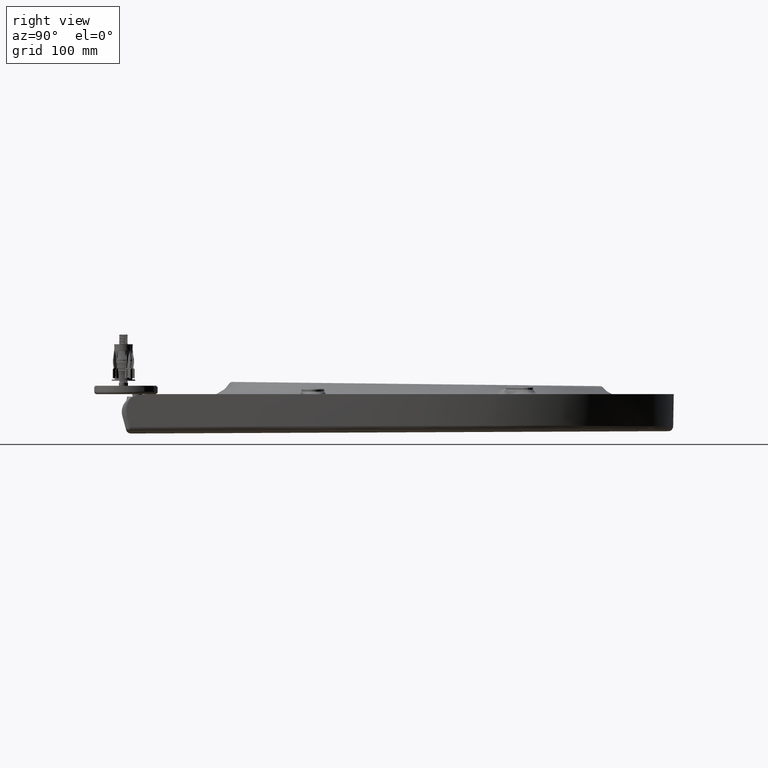
[diagram: clean part render]
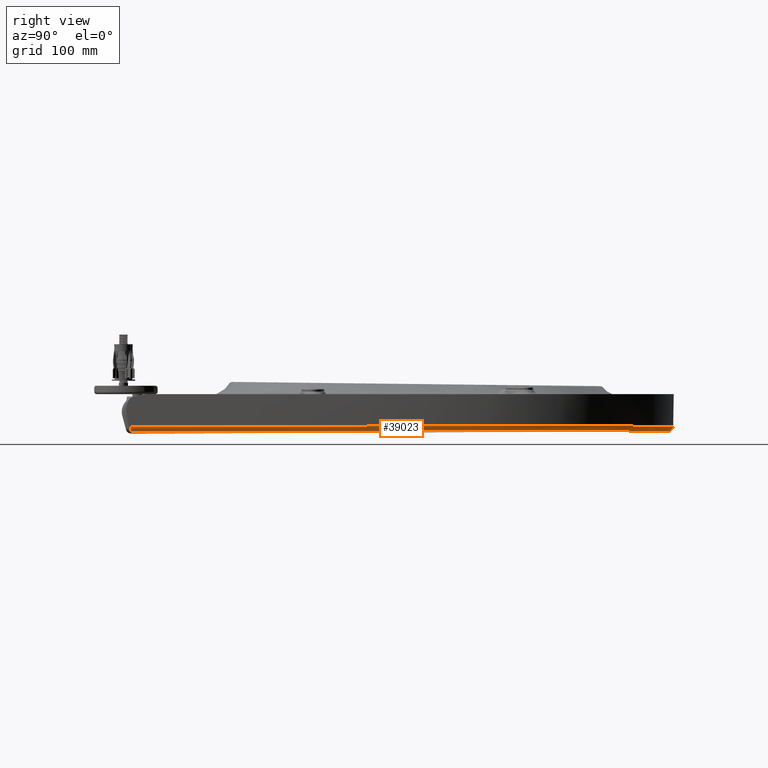
[diagram: same view with one face highlighted and labeled with its STEP entity id]
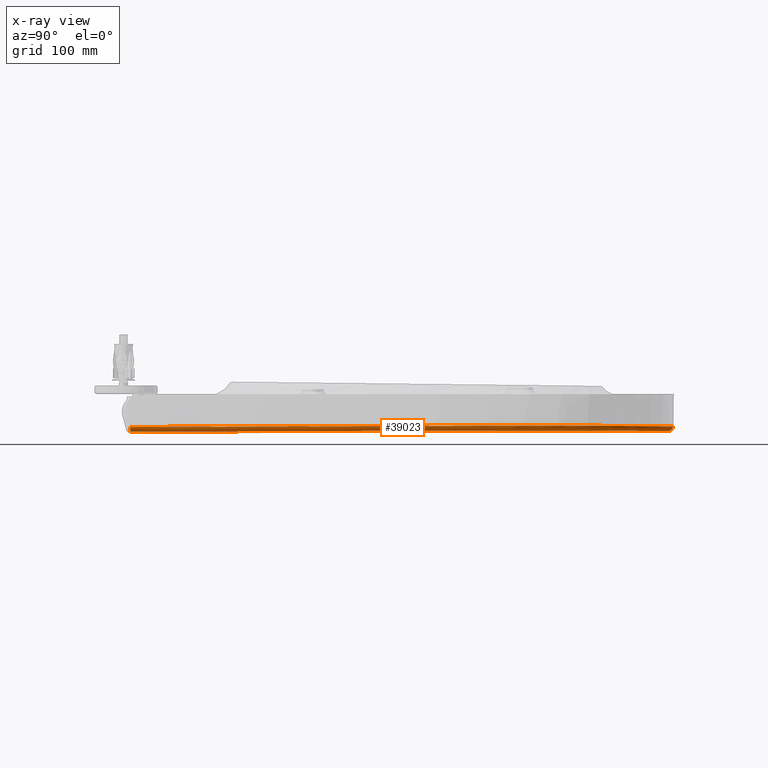
[diagram: x-ray of the same camera — body ghosted, the highlighted face saturated]
A machine part, right view. The second image highlights one B-rep face of the part: STEP entity #39023.
The next image is the same camera in x-ray: the body ghosted, the highlighted face saturated — about 0% of this face is hidden behind the body in this view.
In plain terms, the highlighted face is a freeform B-spline surface patch.
Its self-contained STEP definition (entity closure, byte-faithful):
#33900=CARTESIAN_POINT('',(4.627604190006E2,2.460631033034E1,
3.829599969836E-9));
#33901=CARTESIAN_POINT('',(4.627603025008E2,2.460630953782E1,
-2.270499311639E1));
#33902=CARTESIAN_POINT('',(4.524897503634E2,2.453182587123E1,
-6.805302126482E1));
#33903=CARTESIAN_POINT('',(4.177347201758E2,2.426129125879E1,
-1.143101611632E2));
#33904=CARTESIAN_POINT('',(3.810292007456E2,2.410670723836E1,
-1.412695677349E2));
#33905=CARTESIAN_POINT('',(3.501172814267E2,2.404989789112E1,
-1.556895786610E2));
#33906=CARTESIAN_POINT('',(3.174881770991E2,2.405954227008E1,
-1.649459725552E2));
#33907=CARTESIAN_POINT('',(2.841550716565E2,2.412484238811E1,
-1.702634994909E2));
#33908=CARTESIAN_POINT('',(2.507109372116E2,2.422181941606E1,
-1.734049631759E2));
#33909=CARTESIAN_POINT('',(2.060509088392E2,2.437498452617E1,
-1.759858462827E2));
#33910=CARTESIAN_POINT('',(1.502246252567E2,2.459570771253E1,
-1.773574154955E2));
#33911=CARTESIAN_POINT('',(8.328064476638E1,2.486774198140E1,
-1.781855839516E2));
#33912=CARTESIAN_POINT('',(3.864213415772E1,2.506585890198E1,
-1.784922737170E2));
#33913=CARTESIAN_POINT('',(1.632109471179E1,2.516144530375E1,
-1.785429383431E2));
#34782=CARTESIAN_POINT('',(1.632109471179E1,2.516144530375E1,
-1.785429383431E2));
#34783=CARTESIAN_POINT('',(1.632504537989E1,2.609130234823E1,
-1.785288250556E2));
#34784=CARTESIAN_POINT('',(1.633215677169E1,2.826293438333E1,
-1.777068076364E2));
#34785=CARTESIAN_POINT('',(1.633163809439E1,2.907911611064E1,
-1.755324369923E2));
#34786=CARTESIAN_POINT('',(1.632959549139E1,2.909330554996E1,
-1.746058536913E2));
#34793=CARTESIAN_POINT('',(4.610983279953E2,2.776543725589E1,
5.335791915723E-9));
#34794=CARTESIAN_POINT('',(4.621317713616E2,2.702150237290E1,
1.602790300982E-7));
#34795=CARTESIAN_POINT('',(4.627315847165E2,2.570814705510E1,
-1.239029701076E-9));
#34796=CARTESIAN_POINT('',(4.627604190006E2,2.460631033034E1,
3.829599969836E-9));
#34798=CARTESIAN_POINT('',(4.587786751379E2,2.851904757884E1,
2.029466195107E-9));
#34799=CARTESIAN_POINT('',(4.595337280347E2,2.851578857300E1,
1.165002999368E-7));
#34800=CARTESIAN_POINT('',(4.603878740900E2,2.827686483881E1,
-1.027143536691E-7));
#34801=CARTESIAN_POINT('',(4.610983279953E2,2.776543725589E1,
5.335791915723E-9));
#34803=CARTESIAN_POINT('',(1.632959549139E1,2.909330554996E1,
-1.746058536913E2));
#34804=CARTESIAN_POINT('',(3.863833669077E1,2.899775433623E1,
-1.745551994580E2));
#34805=CARTESIAN_POINT('',(8.325490620242E1,2.880987658701E1,
-1.742432165517E2));
#34806=CARTESIAN_POINT('',(1.501876298821E2,2.853326768873E1,
-1.734316544114E2));
#34807=CARTESIAN_POINT('',(2.170616075387E2,2.827027215039E1,
-1.717281261863E2));
#34808=CARTESIAN_POINT('',(2.727124375249E2,2.808489212178E1,
-1.680772873061E2));
#34809=CARTESIAN_POINT('',(3.166688336907E2,2.799605294869E1,
-1.610876391374E2));
#34810=CARTESIAN_POINT('',(3.487659611391E2,2.798381654259E1,
-1.519640874462E2));
#34811=CARTESIAN_POINT('',(3.789945588015E2,2.803477537495E1,
-1.378554740011E2));
#34812=CARTESIAN_POINT('',(4.148571851060E2,2.817974928419E1,
-1.115044529623E2));
#34813=CARTESIAN_POINT('',(4.487796239173E2,2.842501386519E1,
-6.632233986572E1));
#34814=CARTESIAN_POINT('',(4.587785875307E2,2.851904700339E1,
-2.212669010309E1));
#34815=CARTESIAN_POINT('',(4.587786751379E2,2.851904757885E1,
2.029466195107E-9));
#35445=CARTESIAN_POINT('',(1.632898872135E1,2.909328478536E1,
-1.746073269995E2));
#35446=VERTEX_POINT('',#35445);
#35448=VERTEX_POINT('',#34815);
#35449=VERTEX_POINT('',#34793);
#35450=VERTEX_POINT('',#34796);
#35451=VERTEX_POINT('',#34782);
#38812=CARTESIAN_POINT('',(1.098355538203E1,2.388451157151E1,
-1.783577449176E2));
#38813=CARTESIAN_POINT('',(1.147279900704E1,2.388241072953E1,
-1.783569998274E2));
#38814=CARTESIAN_POINT('',(1.818053974538E1,2.385361824933E1,
-1.783460831337E2));
#38815=CARTESIAN_POINT('',(3.056541517260E1,2.380073213944E1,
-1.783083416184E2));
#38816=CARTESIAN_POINT('',(4.763086646609E1,2.372845029175E1,
-1.782184908165E2));
#38817=CARTESIAN_POINT('',(6.325918306693E1,2.366267892421E1,
-1.781090621422E2));
#38818=CARTESIAN_POINT('',(7.773367709995E1,2.360209824893E1,
-1.779862013323E2));
#38819=CARTESIAN_POINT('',(9.143230123691E1,2.354507414515E1,
-1.778500201474E2));
#38820=CARTESIAN_POINT('',(1.047110318707E2,2.349009054879E1,
-1.776991407280E2));
#38821=CARTESIAN_POINT('',(1.178195215814E2,2.343610005920E1,
-1.775315626716E2));
#38822=CARTESIAN_POINT('',(1.308853439287E2,2.338258278642E1,
-1.773452470407E2));
#38823=CARTESIAN_POINT('',(1.439820870113E2,2.332921939669E1,
-1.771402391586E2));
#38824=CARTESIAN_POINT('',(1.572138278391E2,2.327575523419E1,
-1.769039274366E2));
#38825=CARTESIAN_POINT('',(1.707136773409E2,2.322192346120E1,
-1.766163134835E2));
#38826=CARTESIAN_POINT('',(1.846120211727E2,2.316750680457E1,
-1.762547897886E2));
#38827=CARTESIAN_POINT('',(1.989856954021E2,2.311257474031E1,
-1.757928926801E2));
#38828=CARTESIAN_POINT('',(2.137481463980E2,2.305790088145E1,
-1.752038097255E2));
#38829=CARTESIAN_POINT('',(2.285661372870E2,2.300507213305E1,
-1.744765741926E2));
#38830=CARTESIAN_POINT('',(2.429194753662E2,2.295641393323E1,
-1.736042163689E2));
#38831=CARTESIAN_POINT('',(2.563259637919E2,2.291383753602E1,
-1.725957725325E2));
#38832=CARTESIAN_POINT('',(2.685492191214E2,2.287789222231E1,
-1.714801347268E2));
#38833=CARTESIAN_POINT('',(2.796012586916E2,2.284801004676E1,
-1.702898072617E2));
#38834=CARTESIAN_POINT('',(2.896004294401E2,2.282370894493E1,
-1.690212622932E2));
#38835=CARTESIAN_POINT('',(2.986341075747E2,2.280457051240E1,
-1.676754717130E2));
#38836=CARTESIAN_POINT('',(3.067842548894E2,2.278998447689E1,
-1.662681213351E2));
#38837=CARTESIAN_POINT('',(3.141810429386E2,2.277922795154E1,
-1.648088118153E2));
#38838=CARTESIAN_POINT('',(3.210210063609E2,2.277159054626E1,
-1.632865760277E2));
#38839=CARTESIAN_POINT('',(3.275277059074E2,2.276654963060E1,
-1.616684905915E2));
#38840=CARTESIAN_POINT('',(3.338836881152E2,2.276383245341E1,
-1.599149093752E2));
#38841=CARTESIAN_POINT('',(3.401806869421E2,2.276341649863E1,
-1.579942955151E2));
#38842=CARTESIAN_POINT('',(3.464265002795E2,2.276536445294E1,
-1.558933511354E2));
#38843=CARTESIAN_POINT('',(3.526098481340E2,2.276972537285E1,
-1.536046750944E2));
#38844=CARTESIAN_POINT('',(3.587841735019E2,2.277660517110E1,
-1.510945853922E2));
#38845=CARTESIAN_POINT('',(3.651013011493E2,2.278637739718E1,
-1.482732480780E2));
#38846=CARTESIAN_POINT('',(3.717790873138E2,2.279986587883E1,
-1.449845937162E2));
#38847=CARTESIAN_POINT('',(3.790083511408E2,2.281839628996E1,
-1.410231458250E2));
#38848=CARTESIAN_POINT('',(3.868707100424E2,2.284333932365E1,
-1.361869775203E2));
#38849=CARTESIAN_POINT('',(3.953622255619E2,2.287576853924E1,
-1.302875355688E2));
#38850=CARTESIAN_POINT('',(4.044274152142E2,2.291659822807E1,
-1.231124461825E2));
#38851=CARTESIAN_POINT('',(4.139943635237E2,2.296654723302E1,
-1.143863683374E2));
#38852=CARTESIAN_POINT('',(4.239302473387E2,2.302584026829E1,
-1.037643901213E2));
#38853=CARTESIAN_POINT('',(4.339017322024E2,2.309304304976E1,
-9.094562162919E1));
#38854=CARTESIAN_POINT('',(4.432887387396E2,2.316362825587E1,
-7.587755460211E1));
#38855=CARTESIAN_POINT('',(4.512017923847E2,2.322818009517E1,
-5.929694746022E1));
#38856=CARTESIAN_POINT('',(4.569643475041E2,2.327780225016E1,
-4.251753979352E1));
#38857=CARTESIAN_POINT('',(4.604855201275E2,2.330946355496E1,
-2.684483372821E1));
#38858=CARTESIAN_POINT('',(4.622387753112E2,2.332562618588E1,
-1.279791040715E1));
#38859=CARTESIAN_POINT('',(4.626536484471E2,2.332947023900E1,
-2.226750301398E0));
#38860=CARTESIAN_POINT('',(4.625462930805E2,2.332847542084E1,3.691450294906E0));
#38861=CARTESIAN_POINT('',(4.624838100839E2,2.332789923522E1,5.459472416476E0));
#38862=CARTESIAN_POINT('',(1.100043730240E1,2.741090801931E1,
-1.794995713419E2));
#38863=CARTESIAN_POINT('',(1.148975700910E1,2.740880692517E1,
-1.794988259051E2));
#38864=CARTESIAN_POINT('',(1.819853562334E1,2.738001108205E1,
-1.794879041436E2));
#38865=CARTESIAN_POINT('',(3.058519556822E1,2.732712112950E1,
-1.794501453926E2));
#38866=CARTESIAN_POINT('',(4.765280863636E1,2.725483911757E1,
-1.793602552556E2));
#38867=CARTESIAN_POINT('',(6.328280803699E1,2.718907161786E1,
-1.792507809235E2));
#38868=CARTESIAN_POINT('',(7.775891715265E1,2.712849647474E1,
-1.791278684555E2));
#38869=CARTESIAN_POINT('',(9.145910547653E1,2.707147948366E1,
-1.789916296270E2));
#38870=CARTESIAN_POINT('',(1.047393872581E2,2.701650455778E1,
-1.788406859507E2));
#38871=CARTESIAN_POINT('',(1.178494484036E2,2.696252435821E1,
-1.786730360203E2));
#38872=CARTESIAN_POINT('',(1.309168497103E2,2.690901925439E1,
-1.784866402241E2));
#38873=CARTESIAN_POINT('',(1.440152908008E2,2.685566944364E1,
-1.782815427192E2));
#38874=CARTESIAN_POINT('',(1.572501686101E2,2.680221620493E1,
-1.780451029285E2));
#38875=CARTESIAN_POINT('',(1.707544255198E2,2.674839555738E1,
-1.777573074604E2));
#38876=CARTESIAN_POINT('',(1.846586583452E2,2.669399188530E1,
-1.773955206812E2));
#38877=CARTESIAN_POINT('',(1.990398396348E2,2.663907712798E1,
-1.769332425422E2));
#38878=CARTESIAN_POINT('',(2.138115458501E2,2.658442760854E1,
-1.763436106488E2));
#38879=CARTESIAN_POINT('',(2.286402932608E2,2.653163272173E1,
-1.756156300314E2));
#38880=CARTESIAN_POINT('',(2.430078893597E2,2.648301251988E1,
-1.747421494785E2));
#38881=CARTESIAN_POINT('',(2.564308197118E2,2.644048347403E1,
-1.737321701024E2));
#38882=CARTESIAN_POINT('',(2.686716765697E2,2.640459629075E1,
-1.726145902622E2));
#38883=CARTESIAN_POINT('',(2.797419945222E2,2.637478141493E1,
-1.714219468414E2));
#38884=CARTESIAN_POINT('',(2.897634088844E2,2.635054973450E1,
-1.701502195259E2));
#38885=CARTESIAN_POINT('',(2.988212573009E2,2.633149039757E1,
-1.688004373279E2));
#38886=CARTESIAN_POINT('',(3.069966885254E2,2.631699448585E1,
-1.673883096386E2));
#38887=CARTESIAN_POINT('',(3.144191876603E2,2.630633998128E1,
-1.659234984650E2));
#38888=CARTESIAN_POINT('',(3.212853639603E2,2.629881767571E1,
-1.643949767794E2));
#38889=CARTESIAN_POINT('',(3.278186687982E2,2.629390846454E1,
-1.627697912765E2));
#38890=CARTESIAN_POINT('',(3.342021021200E2,2.629134324658E1,
-1.610081118293E2));
#38891=CARTESIAN_POINT('',(3.405278584537E2,2.629110294911E1,
-1.590781533276E2));
#38892=CARTESIAN_POINT('',(3.468037956881E2,2.629325239570E1,
-1.569664492336E2));
#38893=CARTESIAN_POINT('',(3.530186079373E2,2.629784215627E1,
-1.546654447514E2));
#38894=CARTESIAN_POINT('',(3.592260283478E2,2.630498225041E1,
-1.521411540453E2));
#38895=CARTESIAN_POINT('',(3.655788105466E2,2.631505666223E1,
-1.493030522595E2));
#38896=CARTESIAN_POINT('',(3.722962233027E2,2.632890740997E1,
-1.459939174278E2));
#38897=CARTESIAN_POINT('',(3.795709892841E2,2.634788620500E1,
-1.420063498314E2));
#38898=CARTESIAN_POINT('',(3.874823005772E2,2.637337844656E1,
-1.371385891081E2));
#38899=CARTESIAN_POINT('',(3.960266231141E2,2.640647252612E1,
-1.312006726831E2));
#38900=CARTESIAN_POINT('',(4.051482532569E2,2.644809435463E1,
-1.239787393002E2));
#38901=CARTESIAN_POINT('',(4.147752439477E2,2.649897313196E1,
-1.151952631549E2));
#38902=CARTESIAN_POINT('',(4.247743523995E2,2.655933673093E1,
-1.045025472762E2));
#38903=CARTESIAN_POINT('',(4.348111614438E2,2.662773131115E1,
-9.159598593268E1));
#38904=CARTESIAN_POINT('',(4.442602525244E2,2.669954443182E1,
-7.642371645375E1));
#38905=CARTESIAN_POINT('',(4.522257144072E2,2.676520599566E1,
-5.972836395819E1));
#38906=CARTESIAN_POINT('',(4.580277906317E2,2.681568780928E1,
-4.282923841419E1));
#38907=CARTESIAN_POINT('',(4.615739058574E2,2.684790000139E1,
-2.704094690036E1));
#38908=CARTESIAN_POINT('',(4.633393816278E2,2.686434068959E1,
-1.289160140195E1));
#38909=CARTESIAN_POINT('',(4.637571772342E2,2.686825117971E1,
-2.243103999444E0));
#38910=CARTESIAN_POINT('',(4.636490683300E2,2.686723918566E1,3.718526252568E0));
#38911=CARTESIAN_POINT('',(4.635861451258E2,2.686665302751E1,5.499539164085E0));
#38912=CARTESIAN_POINT('',(1.100777246214E1,3.004348424758E1,
-1.768901627693E2));
#38913=CARTESIAN_POINT('',(1.149690685454E1,3.004138377884E1,
-1.768894174438E2));
#38914=CARTESIAN_POINT('',(1.820315748546E1,3.001259629124E1,
-1.768784972880E2));
#38915=CARTESIAN_POINT('',(3.058547083205E1,2.995971626660E1,
-1.768407433937E2));
#38916=CARTESIAN_POINT('',(4.764781840967E1,2.988743600697E1,
-1.767508606779E2));
#38917=CARTESIAN_POINT('',(6.327371897381E1,2.982166073231E1,
-1.766413898999E2));
#38918=CARTESIAN_POINT('',(7.774589419443E1,2.976107396117E1,
-1.765184823885E2));
#38919=CARTESIAN_POINT('',(9.144227259231E1,2.970404169099E1,
-1.763822499923E2));
#38920=CARTESIAN_POINT('',(1.047187762086E2,2.964904791061E1,
-1.762313143980E2));
#38921=CARTESIAN_POINT('',(1.178250097763E2,2.959504516004E1,
-1.760636746772E2));
#38922=CARTESIAN_POINT('',(1.308885651785E2,2.954151320674E1,
-1.758772908535E2));
#38923=CARTESIAN_POINT('',(1.439828703957E2,2.948813338858E1,
-1.756722099736E2));
#38924=CARTESIAN_POINT('',(1.572101073846E2,2.943465707246E1,
-1.754358497427E2));
#38925=CARTESIAN_POINT('',(1.707036290633E2,2.938081361502E1,
-1.751482136552E2));
#38926=CARTESIAN_POINT('',(1.845935179217E2,2.932638369515E1,
-1.747867124008E2));
#38927=CARTESIAN_POINT('',(1.989564140796E2,2.927143363699E1,
-1.743249085879E2));
#38928=CARTESIAN_POINT('',(2.137055771299E2,2.921673354529E1,
-1.737360352722E2));
#38929=CARTESIAN_POINT('',(2.285081246191E2,2.916386689146E1,
-1.730091555559E2));
#38930=CARTESIAN_POINT('',(2.428409921064E2,2.911516691307E1,
-1.721375540716E2));
#38931=CARTESIAN_POINT('',(2.562238744514E2,2.907253720727E1,
-1.711303266106E2));
#38932=CARTESIAN_POINT('',(2.684218588323E2,2.903652455401E1,
-1.700163845924E2));
#38933=CARTESIAN_POINT('',(2.794476556799E2,2.900656282348E1,
-1.688282174721E2));
#38934=CARTESIAN_POINT('',(2.894148907133E2,2.898218007352E1,
-1.675630026884E2));
#38935=CARTESIAN_POINT('',(2.984138669643E2,2.896294702011E1,
-1.662216308840E2));
#38936=CARTESIAN_POINT('',(3.065277135310E2,2.894825120189E1,
-1.648197693944E2));
#38937=CARTESIAN_POINT('',(3.138875875255E2,2.893736833348E1,
-1.633669400387E2));
#38938=CARTESIAN_POINT('',(3.206899164591E2,2.892958645877E1,
-1.618522510958E2));
#38939=CARTESIAN_POINT('',(3.271584181216E2,2.892437831073E1,
-1.602427898144E2));
#38940=CARTESIAN_POINT('',(3.334749880807E2,2.892146638633E1,
-1.584991358070E2));
#38941=CARTESIAN_POINT('',(3.397306990416E2,2.892082357497E1,
-1.565900784126E2));
#38942=CARTESIAN_POINT('',(3.459332627562E2,2.892250958203E1,
-1.545025493911E2));
#38943=CARTESIAN_POINT('',(3.520714364054E2,2.892657128662E1,
-1.522293614466E2));
#38944=CARTESIAN_POINT('',(3.581982464103E2,2.893310901835E1,
-1.497372366727E2));
#38945=CARTESIAN_POINT('',(3.644641839488E2,2.894248230925E1,
-1.469372469554E2));
#38946=CARTESIAN_POINT('',(3.710850772540E2,2.895549052478E1,
-1.436748278057E2));
#38947=CARTESIAN_POINT('',(3.782490125378E2,2.897342395529E1,
-1.397470682060E2));
#38948=CARTESIAN_POINT('',(3.860410893291E2,2.899763386278E1,
-1.349516026676E2));
#38949=CARTESIAN_POINT('',(3.944567885832E2,2.902917349525E1,
-1.291017205005E2));
#38950=CARTESIAN_POINT('',(4.034409453331E2,2.906894108919E1,
-1.219869794296E2));
#38951=CARTESIAN_POINT('',(4.129216894480E2,2.911764098458E1,
-1.133349114723E2));
#38952=CARTESIAN_POINT('',(4.227668002574E2,2.917549301238E1,
-1.028042731300E2));
#38953=CARTESIAN_POINT('',(4.326444977725E2,2.924108821874E1,
-9.009922583646E1));
#38954=CARTESIAN_POINT('',(4.419423682047E2,2.931001476664E1,
-7.516628047370E1));
#38955=CARTESIAN_POINT('',(4.497801782432E2,2.937306597609E1,
-5.873447804019E1));
#38956=CARTESIAN_POINT('',(4.554859920826E2,2.942152372936E1,
-4.211083563266E1));
#38957=CARTESIAN_POINT('',(4.589713540877E2,2.945243800123E1,
-2.658903783619E1));
#38958=CARTESIAN_POINT('',(4.607070639212E2,2.946822365384E1,
-1.267568009614E1));
#38959=CARTESIAN_POINT('',(4.611177412056E2,2.947197759981E1,
-2.205408074481E0));
#38960=CARTESIAN_POINT('',(4.610114677086E2,2.947100607549E1,3.656119759428E0));
#38961=CARTESIAN_POINT('',(4.609496167271E2,2.947044341537E1,5.407187566952E0));
#38962=CARTESIAN_POINT('',(1.099762176035E1,2.893291058379E1,
-1.733537737053E2));
#38963=CARTESIAN_POINT('',(1.148651001463E1,2.893081094113E1,
-1.733530288285E2));
#38964=CARTESIAN_POINT('',(1.818940292812E1,2.890203448400E1,
-1.733421152139E2));
#38965=CARTESIAN_POINT('',(3.056594303638E1,2.884916741253E1,
-1.733043830123E2));
#38966=CARTESIAN_POINT('',(4.762129688357E1,2.877688892516E1,
-1.732145464417E2));
#38967=CARTESIAN_POINT('',(6.324175328955E1,2.871110264786E1,
-1.731051245829E2));
#38968=CARTESIAN_POINT('',(7.770870343017E1,2.865049967396E1,
-1.729822732783E2));
#38969=CARTESIAN_POINT('',(9.140002140577E1,2.859344626998E1,
-1.728461044282E2));
#38970=CARTESIAN_POINT('',(1.046715067847E2,2.853842651700E1,
-1.726952405073E2));
#38971=CARTESIAN_POINT('',(1.177726564837E2,2.848439278215E1,
-1.725276820296E2));
#38972=CARTESIAN_POINT('',(1.308311036751E2,2.843082402106E1,
-1.723413893580E2));
#38973=CARTESIAN_POINT('',(1.439199155386E2,2.837740308718E1,
-1.721364133570E2));
#38974=CARTESIAN_POINT('',(1.571370038333E2,2.832389466993E1,
-1.719002542041E2));
#38975=CARTESIAN_POINT('',(1.706162667596E2,2.827001915522E1,
-1.716129458895E2));
#38976=CARTESIAN_POINT('',(1.844871036695E2,2.821555216412E1,
-1.712519697355E2));
#38977=CARTESIAN_POINT('',(1.988257131436E2,2.816055240469E1,
-1.707909822256E2));
#38978=CARTESIAN_POINT('',(2.135449339035E2,2.810578156517E1,
-1.702033539689E2));
#38979=CARTESIAN_POINT('',(2.283126821229E2,2.805281519168E1,
-1.694782295953E2));
#38980=CARTESIAN_POINT('',(2.425994223627E2,2.800400400719E1,
-1.686094751953E2));
#38981=CARTESIAN_POINT('',(2.559291121312E2,2.796123457792E1,
-1.676063086099E2));
#38982=CARTESIAN_POINT('',(2.680701524166E2,2.792504865485E1,
-1.664976469279E2));
#38983=CARTESIAN_POINT('',(2.790368154269E2,2.789488486118E1,
-1.653159035071E2));
#38984=CARTESIAN_POINT('',(2.889320883787E2,2.787029405860E1,
-1.640598473922E2));
#38985=CARTESIAN_POINT('',(2.978528694283E2,2.785082249608E1,
-1.627301851287E2));
#38986=CARTESIAN_POINT('',(3.058849180068E2,2.783585310691E1,
-1.613425218814E2));
#38987=CARTESIAN_POINT('',(3.131616120228E2,2.782465865623E1,
-1.599061894731E2));
#38988=CARTESIAN_POINT('',(3.198791375920E2,2.781652348431E1,
-1.584104802505E2));
#38989=CARTESIAN_POINT('',(3.262615663640E2,2.781090930791E1,
-1.568225486018E2));
#38990=CARTESIAN_POINT('',(3.324893270486E2,2.780752726395E1,
-1.551035341387E2));
#38991=CARTESIAN_POINT('',(3.386520023229E2,2.780633942242E1,
-1.532230015983E2));
#38992=CARTESIAN_POINT('',(3.447571098373E2,2.780739865501E1,
-1.511684169064E2));
#38993=CARTESIAN_POINT('',(3.507934905392E2,2.781074694052E1,
-1.489330836631E2));
#38994=CARTESIAN_POINT('',(3.568132321621E2,2.781647160951E1,
-1.464846774400E2));
#38995=CARTESIAN_POINT('',(3.629638208534E2,2.782489932063E1,
-1.437364263016E2));
#38996=CARTESIAN_POINT('',(3.694565150554E2,2.783677210782E1,
-1.405373569632E2));
#38997=CARTESIAN_POINT('',(3.764732427443E2,2.785329786011E1,
-1.366906007677E2));
#38998=CARTESIAN_POINT('',(3.841069498279E2,2.787578180678E1,
-1.319930704009E2));
#38999=CARTESIAN_POINT('',(3.923518089934E2,2.790523011375E1,
-1.262624486551E2));
#39000=CARTESIAN_POINT('',(4.011533707463E2,2.794250400205E1,
-1.192929182024E2));
#39001=CARTESIAN_POINT('',(4.104398671315E2,2.798827464160E1,
-1.108188372261E2));
#39002=CARTESIAN_POINT('',(4.200804350740E2,2.804275132501E1,
-1.005076694116E2));
#39003=CARTESIAN_POINT('',(4.297467973440E2,2.810458584550E1,
-8.807533733874E1));
#39004=CARTESIAN_POINT('',(4.388438133525E2,2.816963557235E1,
-7.346621376741E1));
#39005=CARTESIAN_POINT('',(4.465120735374E2,2.822918162667E1,
-5.739100732717E1));
#39006=CARTESIAN_POINT('',(4.520900296602E2,2.827492231219E1,
-4.113988400001E1));
#39007=CARTESIAN_POINT('',(4.554946979654E2,2.830409464090E1,
-2.597822358081E1));
#39008=CARTESIAN_POINT('',(4.571908720568E2,2.831900113308E1,
-1.238384569927E1));
#39009=CARTESIAN_POINT('',(4.575920946367E2,2.832254498698E1,
-2.154462149470E0));
#39010=CARTESIAN_POINT('',(4.574882589658E2,2.832162777619E1,3.571775553889E0));
#39011=CARTESIAN_POINT('',(4.574278321330E2,2.832109665193E1,5.282373000799E0));
#39012=(BOUNDED_SURFACE()B_SPLINE_SURFACE(3,3,((#38812,#38813,#38814,#38815,
#38816,#38817,#38818,#38819,#38820,#38821,#38822,#38823,#38824,#38825,#38826,
#38827,#38828,#38829,#38830,#38831,#38832,#38833,#38834,#38835,#38836,#38837,
#38838,#38839,#38840,#38841,#38842,#38843,#38844,#38845,#38846,#38847,#38848,
#38849,#38850,#38851,#38852,#38853,#38854,#38855,#38856,#38857,#38858,#38859,
#38860,#38861),(#38862,#38863,#38864,#38865,#38866,#38867,#38868,#38869,#38870,
#38871,#38872,#38873,#38874,#38875,#38876,#38877,#38878,#38879,#38880,#38881,
#38882,#38883,#38884,#38885,#38886,#38887,#38888,#38889,#38890,#38891,#38892,
#38893,#38894,#38895,#38896,#38897,#38898,#38899,#38900,#38901,#38902,#38903,
#38904,#38905,#38906,#38907,#38908,#38909,#38910,#38911),(#38912,#38913,#38914,
#38915,#38916,#38917,#38918,#38919,#38920,#38921,#38922,#38923,#38924,#38925,
#38926,#38927,#38928,#38929,#38930,#38931,#38932,#38933,#38934,#38935,#38936,
#38937,#38938,#38939,#38940,#38941,#38942,#38943,#38944,#38945,#38946,#38947,
#38948,#38949,#38950,#38951,#38952,#38953,#38954,#38955,#38956,#38957,#38958,
#38959,#38960,#38961),(#38962,#38963,#38964,#38965,#38966,#38967,#38968,#38969,
#38970,#38971,#38972,#38973,#38974,#38975,#38976,#38977,#38978,#38979,#38980,
#38981,#38982,#38983,#38984,#38985,#38986,#38987,#38988,#38989,#38990,#38991,
#38992,#38993,#38994,#38995,#38996,#38997,#38998,#38999,#39000,#39001,#39002,
#39003,#39004,#39005,#39006,#39007,#39008,#39009,#39010,#39011)),.UNSPECIFIED.,
.F.,.F.,.F.)B_SPLINE_SURFACE_WITH_KNOTS((4,4),(4,1,1,1,1,1,1,1,1,1,1,1,1,1,1,1,
1,1,1,1,1,1,1,1,1,1,1,1,1,1,1,1,1,1,1,1,1,1,1,1,1,1,1,1,1,1,1,4),(0.E0,1.E0),(
-2.120148574154E-3,0.E0,2.694805697555E-2,5.155151747925E-2,7.395929241183E-2,
9.468268076287E-2,1.142855231179E-1,1.333310306069E-1,1.522350632103E-1,
1.711006202245E-1,1.899622005639E-1,2.090002791229E-1,2.284389098142E-1,
2.484541787439E-1,2.692120012449E-1,2.907066897177E-1,3.124084490024E-1,
3.334180777177E-1,3.529004372521E-1,3.705245233087E-1,3.864491803896E-1,
4.009039541731E-1,4.139935708887E-1,4.257973117326E-1,4.365007084440E-1,
4.464145386980E-1,4.559055652929E-1,4.652924514332E-1,4.747126409846E-1,
4.841440499180E-1,4.935410528995E-1,5.029591902962E-1,5.126796919820E-1,
5.231418811174E-1,5.347838559390E-1,5.478915328208E-1,5.625728356957E-1,
5.789488557660E-1,5.972665077553E-1,6.178580563383E-1,6.410201819419E-1,
6.665173273957E-1,6.935192118332E-1,7.193005874467E-1,7.420772997619E-1,
7.619233985215E-1,7.796215218348E-1,7.871674679255E-1),.UNSPECIFIED.)GEOMETRIC_REPRESENTATION_ITEM()RATIONAL_B_SPLINE_SURFACE(((1.370959361707E0,
1.370959361707E0,1.370959361707E0,1.370959361707E0,1.370959361707E0,
1.370959361707E0,1.370959361707E0,1.370959361707E0,1.370959361707E0,
1.370959361707E0,1.370959361707E0,1.370959361707E0,1.370959361707E0,
1.370959361707E0,1.370959361707E0,1.370959361707E0,1.370959361707E0,
1.370959361707E0,1.370959361707E0,1.370959361707E0,1.370959361707E0,
1.370959361707E0,1.370959361707E0,1.370959361707E0,1.370959361707E0,
1.370959361707E0,1.370959361707E0,1.370959361707E0,1.370959361707E0,
1.370959361707E0,1.370959361707E0,1.370959361707E0,1.370959361707E0,
1.370959361707E0,1.370959361707E0,1.370959361707E0,1.370959361707E0,
1.370959361707E0,1.370959361707E0,1.370959361707E0,1.370959361707E0,
1.370959361707E0,1.370959361707E0,1.370959361707E0,1.370959361707E0,
1.370959361707E0,1.370959361707E0,1.370959361707E0,1.370959361707E0,
1.370959361707E0),(8.763468794310E-1,8.763468794310E-1,8.763468794310E-1,
8.763468794310E-1,8.763468794310E-1,8.763468794310E-1,8.763468794310E-1,
8.763468794310E-1,8.763468794310E-1,8.763468794310E-1,8.763468794310E-1,
8.763468794310E-1,8.763468794310E-1,8.763468794310E-1,8.763468794310E-1,
8.763468794310E-1,8.763468794310E-1,8.763468794310E-1,8.763468794310E-1,
8.763468794310E-1,8.763468794310E-1,8.763468794310E-1,8.763468794310E-1,
8.763468794310E-1,8.763468794310E-1,8.763468794310E-1,8.763468794310E-1,
8.763468794310E-1,8.763468794310E-1,8.763468794310E-1,8.763468794310E-1,
8.763468794310E-1,8.763468794310E-1,8.763468794310E-1,8.763468794310E-1,
8.763468794310E-1,8.763468794310E-1,8.763468794310E-1,8.763468794310E-1,
8.763468794310E-1,8.763468794310E-1,8.763468794310E-1,8.763468794310E-1,
8.763468794310E-1,8.763468794310E-1,8.763468794310E-1,8.763468794310E-1,
8.763468794310E-1,8.763468794310E-1,8.763468794310E-1),(8.763468794310E-1,
8.763468794310E-1,8.763468794310E-1,8.763468794310E-1,8.763468794310E-1,
8.763468794310E-1,8.763468794310E-1,8.763468794310E-1,8.763468794310E-1,
8.763468794310E-1,8.763468794310E-1,8.763468794310E-1,8.763468794310E-1,
8.763468794310E-1,8.763468794310E-1,8.763468794310E-1,8.763468794310E-1,
8.763468794310E-1,8.763468794310E-1,8.763468794310E-1,8.763468794310E-1,
8.763468794310E-1,8.763468794310E-1,8.763468794310E-1,8.763468794310E-1,
8.763468794310E-1,8.763468794310E-1,8.763468794310E-1,8.763468794310E-1,
8.763468794310E-1,8.763468794310E-1,8.763468794310E-1,8.763468794310E-1,
8.763468794310E-1,8.763468794310E-1,8.763468794310E-1,8.763468794310E-1,
8.763468794310E-1,8.763468794310E-1,8.763468794310E-1,8.763468794310E-1,
8.763468794310E-1,8.763468794310E-1,8.763468794310E-1,8.763468794310E-1,
8.763468794310E-1,8.763468794310E-1,8.763468794310E-1,8.763468794310E-1,
8.763468794310E-1),(1.370959361707E0,1.370959361707E0,1.370959361707E0,
1.370959361707E0,1.370959361707E0,1.370959361707E0,1.370959361707E0,
1.370959361707E0,1.370959361707E0,1.370959361707E0,1.370959361707E0,
1.370959361707E0,1.370959361707E0,1.370959361707E0,1.370959361707E0,
1.370959361707E0,1.370959361707E0,1.370959361707E0,1.370959361707E0,
1.370959361707E0,1.370959361707E0,1.370959361707E0,1.370959361707E0,
1.370959361707E0,1.370959361707E0,1.370959361707E0,1.370959361707E0,
1.370959361707E0,1.370959361707E0,1.370959361707E0,1.370959361707E0,
1.370959361707E0,1.370959361707E0,1.370959361707E0,1.370959361707E0,
1.370959361707E0,1.370959361707E0,1.370959361707E0,1.370959361707E0,
1.370959361707E0,1.370959361707E0,1.370959361707E0,1.370959361707E0,
1.370959361707E0,1.370959361707E0,1.370959361707E0,1.370959361707E0,
1.370959361707E0,1.370959361707E0,1.370959361707E0)))REPRESENTATION_ITEM('')SURFACE());
#39014=ORIENTED_EDGE('',*,*,#39013,.F.);
#39016=ORIENTED_EDGE('',*,*,#39015,.F.);
#39018=ORIENTED_EDGE('',*,*,#39017,.F.);
#39019=ORIENTED_EDGE('',*,*,#38806,.F.);
#39020=ORIENTED_EDGE('',*,*,#36827,.F.);
#39021=EDGE_LOOP('',(#39014,#39016,#39018,#39019,#39020));
#39022=FACE_OUTER_BOUND('',#39021,.F.);
#33914=B_SPLINE_CURVE_WITH_KNOTS('',3,(#33900,#33901,#33902,#33903,#33904,
#33905,#33906,#33907,#33908,#33909,#33910,#33911,#33912,#33913),.UNSPECIFIED.,
.F.,.F.,(4,1,1,1,1,1,1,1,1,1,1,4),(0.E0,1.25E-1,2.5E-1,3.125E-1,3.75E-1,
4.375E-1,5.E-1,5.625E-1,6.25E-1,7.5E-1,8.75E-1,1.E0),.UNSPECIFIED.);
#34787=B_SPLINE_CURVE_WITH_KNOTS('',3,(#34782,#34783,#34784,#34785,#34786),
.UNSPECIFIED.,.F.,.F.,(4,1,4),(0.E0,5.E-1,1.E0),.UNSPECIFIED.);
#34797=B_SPLINE_CURVE_WITH_KNOTS('',3,(#34793,#34794,#34795,#34796),
.UNSPECIFIED.,.F.,.F.,(4,4),(0.E0,1.E0),.UNSPECIFIED.);
#34802=B_SPLINE_CURVE_WITH_KNOTS('',3,(#34798,#34799,#34800,#34801),
.UNSPECIFIED.,.F.,.F.,(4,4),(0.E0,1.E0),.UNSPECIFIED.);
#34816=B_SPLINE_CURVE_WITH_KNOTS('',3,(#34803,#34804,#34805,#34806,#34807,
#34808,#34809,#34810,#34811,#34812,#34813,#34814,#34815),.UNSPECIFIED.,.F.,.F.,(
4,1,1,1,1,1,1,1,1,1,4),(0.E0,1.25E-1,2.5E-1,3.75E-1,5.E-1,5.625E-1,6.25E-1,
6.875E-1,7.5E-1,8.75E-1,1.E0),.UNSPECIFIED.);
#36827=EDGE_CURVE('',#35450,#35451,#33914,.T.);
#38806=EDGE_CURVE('',#35451,#35446,#34787,.T.);
#39013=EDGE_CURVE('',#35449,#35450,#34797,.T.);
#39015=EDGE_CURVE('',#35448,#35449,#34802,.T.);
#39017=EDGE_CURVE('',#35446,#35448,#34816,.T.);
#39023=ADVANCED_FACE('',(#39022),#39012,.T.);